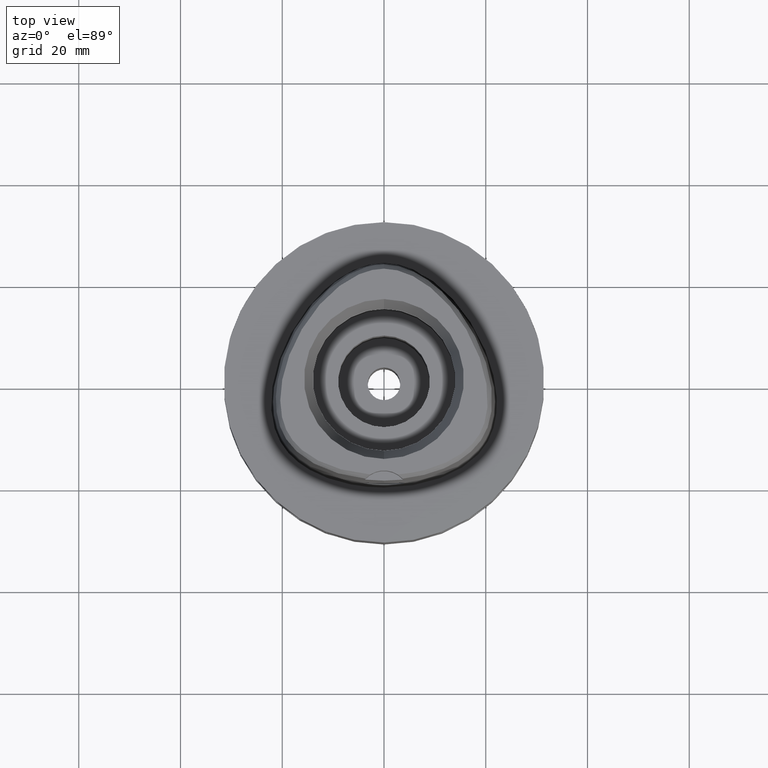
[diagram: clean part render]
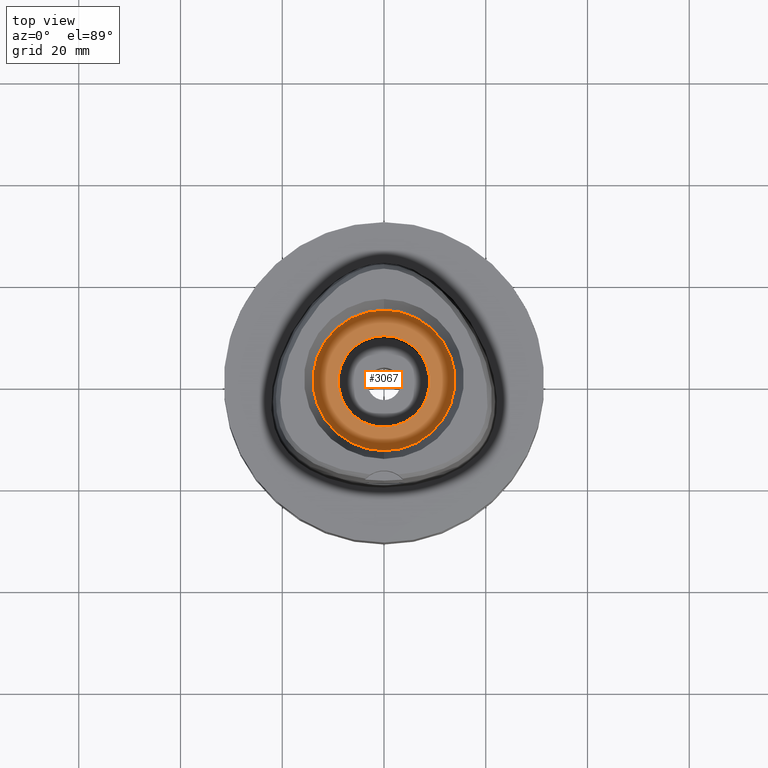
[diagram: same view with one face highlighted and labeled with its STEP entity id]
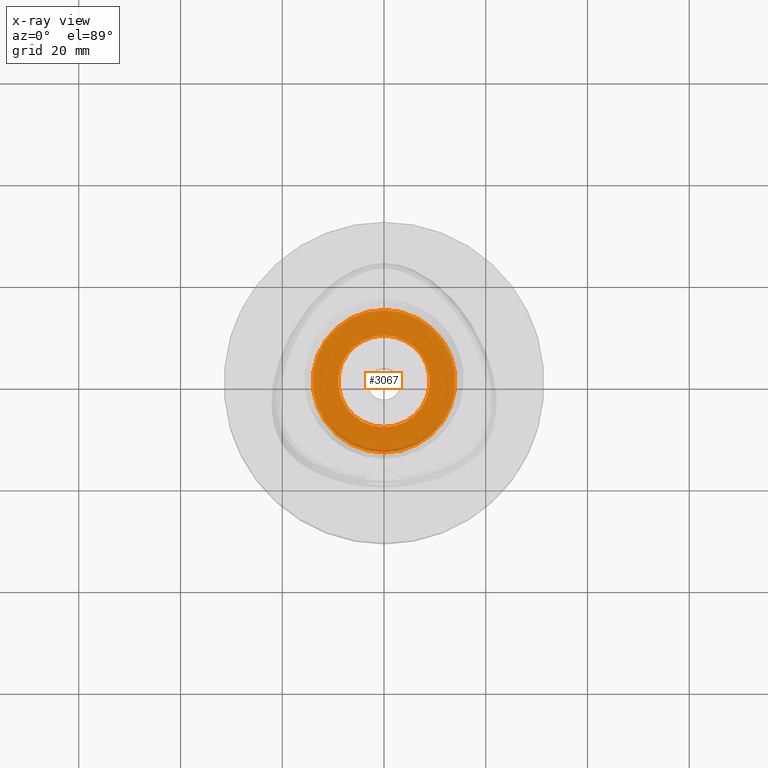
[diagram: x-ray of the same camera — body ghosted, the highlighted face saturated]
A machine part, top view. The second image highlights one B-rep face of the part: STEP entity #3067.
The next image is the same camera in x-ray: the body ghosted, the highlighted face saturated — about 3% of this face is hidden behind the body in this view.
In plain terms, the highlighted planar face has unit normal (0, 0, -1).
Its self-contained STEP definition (entity closure, byte-faithful):
#13 = EDGE_CURVE ( 'NONE', #3420, #1900, #2703, .T. ) ;
#78 = DIRECTION ( 'NONE',  ( 0.0000000000000000000, 0.0000000000000000000, 1.000000000000000000 ) ) ;
#238 = CARTESIAN_POINT ( 'NONE',  ( 0.0000000000000000000, 0.0000000000000000000, 11.00000000000000000 ) ) ;
#287 = DIRECTION ( 'NONE',  ( 0.0000000000000000000, -1.000000000000000000, 0.0000000000000000000 ) ) ;
#706 = FACE_OUTER_BOUND ( 'NONE', #1146, .T. ) ;
#725 = CARTESIAN_POINT ( 'NONE',  ( 0.0000000000000000000, 0.0000000000000000000, 11.00000000000000000 ) ) ;
#877 = CIRCLE ( 'NONE', #3099, 14.00000000000000000 ) ;
#991 = AXIS2_PLACEMENT_3D ( 'NONE', #725, #78, #3035 ) ;
#1089 = PLANE ( 'NONE',  #4206 ) ;
#1099 = DIRECTION ( 'NONE',  ( 0.0000000000000000000, 1.000000000000000000, 0.0000000000000000000 ) ) ;
#1146 = EDGE_LOOP ( 'NONE', ( #2465, #3357 ) ) ;
#1295 = DIRECTION ( 'NONE',  ( 0.0000000000000000000, 0.0000000000000000000, 1.000000000000000000 ) ) ;
#1420 = CARTESIAN_POINT ( 'NONE',  ( 0.0000000000000000000, 14.00000000000000000, 11.00000000000000000 ) ) ;
#1467 = CARTESIAN_POINT ( 'NONE',  ( 0.0000000000000000000, -9.000000000000000000, 11.00000000000000000 ) ) ;
#1641 = DIRECTION ( 'NONE',  ( 0.0000000000000000000, 1.000000000000000000, 0.0000000000000000000 ) ) ;
#1900 = VERTEX_POINT ( 'NONE', #1420 ) ;
#1934 = DIRECTION ( 'NONE',  ( 0.0000000000000000000, 0.0000000000000000000, -1.000000000000000000 ) ) ;
#1977 = EDGE_CURVE ( 'NONE', #2658, #2681, #3754, .T. ) ;
#2003 = ORIENTED_EDGE ( 'NONE', *, *, #1977, .F. ) ;
#2009 = DIRECTION ( 'NONE',  ( 0.0000000000000000000, 0.0000000000000000000, -1.000000000000000000 ) ) ;
#2078 = DIRECTION ( 'NONE',  ( 0.0000000000000000000, -1.000000000000000000, 0.0000000000000000000 ) ) ;
#2206 = ORIENTED_EDGE ( 'NONE', *, *, #2220, .F. ) ;
#2220 = EDGE_CURVE ( 'NONE', #2681, #2658, #4786, .T. ) ;
#2405 = AXIS2_PLACEMENT_3D ( 'NONE', #238, #2009, #2078 ) ;
#2465 = ORIENTED_EDGE ( 'NONE', *, *, #13, .F. ) ;
#2566 = AXIS2_PLACEMENT_3D ( 'NONE', #4642, #1295, #1641 ) ;
#2658 = VERTEX_POINT ( 'NONE', #1467 ) ;
#2681 = VERTEX_POINT ( 'NONE', #3079 ) ;
#2693 = EDGE_LOOP ( 'NONE', ( #2003, #2206 ) ) ;
#2703 = CIRCLE ( 'NONE', #2405, 14.00000000000000000 ) ;
#2807 = EDGE_CURVE ( 'NONE', #1900, #3420, #877, .T. ) ;
#2916 = CARTESIAN_POINT ( 'NONE',  ( 0.0000000000000000000, 0.0000000000000000000, 11.00000000000000000 ) ) ;
#3035 = DIRECTION ( 'NONE',  ( 0.0000000000000000000, -1.000000000000000000, 0.0000000000000000000 ) ) ;
#3067 = ADVANCED_FACE ( 'NONE', ( #706, #4842 ), #1089, .F. ) ;
#3079 = CARTESIAN_POINT ( 'NONE',  ( 0.0000000000000000000, 9.000000000000000000, 11.00000000000000000 ) ) ;
#3099 = AXIS2_PLACEMENT_3D ( 'NONE', #4515, #1934, #1099 ) ;
#3162 = CARTESIAN_POINT ( 'NONE',  ( 0.0000000000000000000, -14.00000000000000000, 11.00000000000000000 ) ) ;
#3357 = ORIENTED_EDGE ( 'NONE', *, *, #2807, .F. ) ;
#3420 = VERTEX_POINT ( 'NONE', #3162 ) ;
#3660 = DIRECTION ( 'NONE',  ( 0.0000000000000000000, 0.0000000000000000000, -1.000000000000000000 ) ) ;
#3754 = CIRCLE ( 'NONE', #991, 9.000000000000000000 ) ;
#4206 = AXIS2_PLACEMENT_3D ( 'NONE', #2916, #3660, #287 ) ;
#4515 = CARTESIAN_POINT ( 'NONE',  ( 0.0000000000000000000, 0.0000000000000000000, 11.00000000000000000 ) ) ;
#4642 = CARTESIAN_POINT ( 'NONE',  ( 0.0000000000000000000, 0.0000000000000000000, 11.00000000000000000 ) ) ;
#4786 = CIRCLE ( 'NONE', #2566, 9.000000000000000000 ) ;
#4842 = FACE_BOUND ( 'NONE', #2693, .T. ) ;